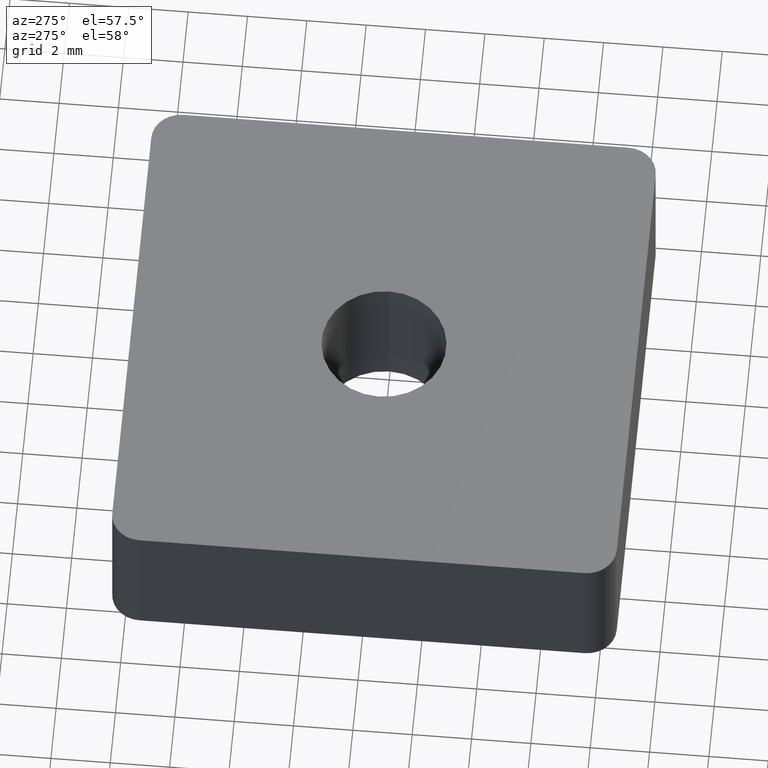
[diagram: clean part render]
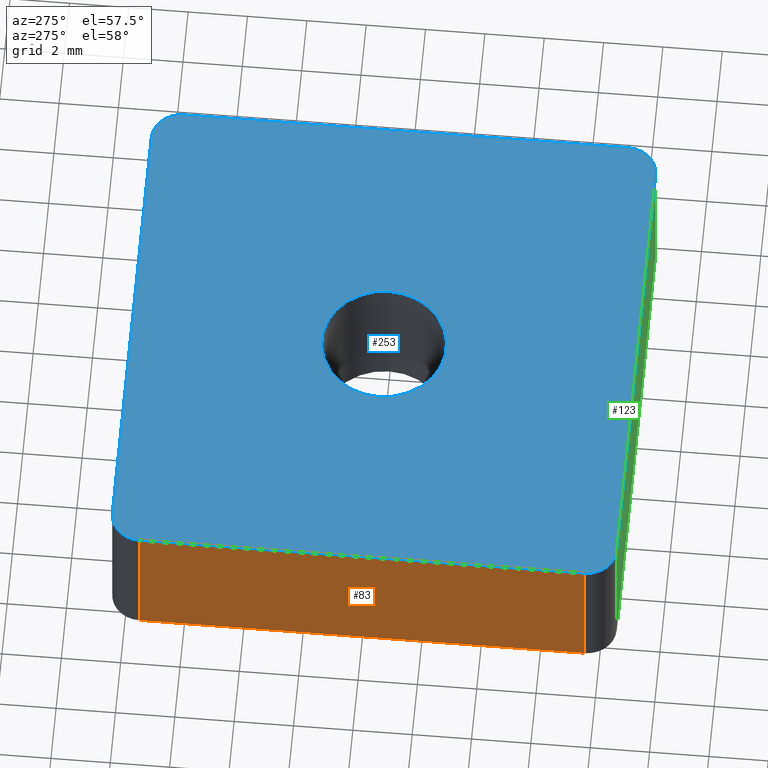
[diagram: same view with three faces highlighted in distinct colors, each labeled with its STEP entity id]
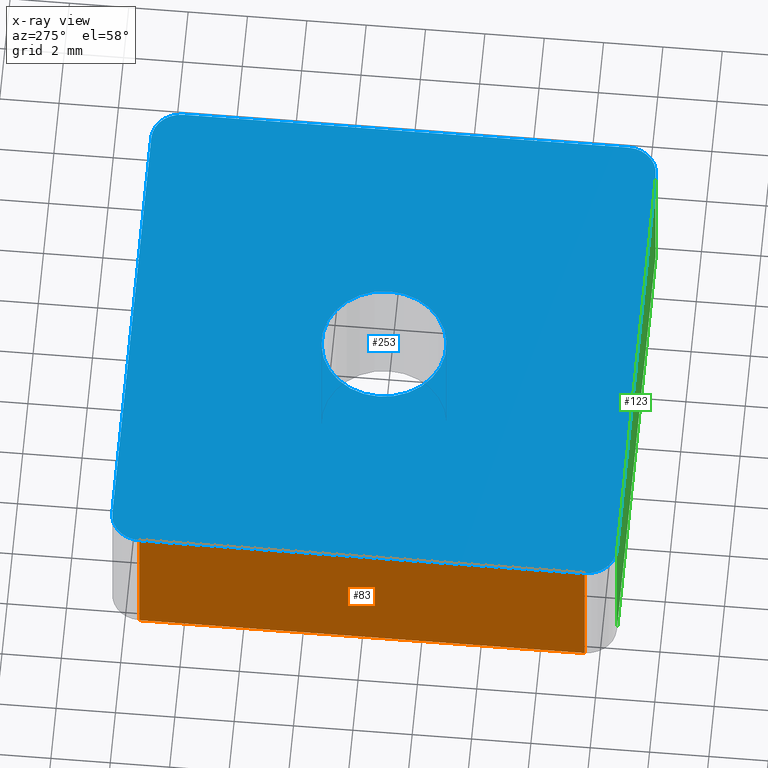
[diagram: x-ray of the same camera — body ghosted, the three highlighted faces saturated]
A machine part, auxiliary view with three faces highlighted in distinct colors.
The next image is the same camera in x-ray (body ghosted, the three faces saturated) — at least one of them is partly hidden behind the body in this view.
Their STEP definitions:

[orange] entity #83 — the highlighted planar face has unit normal (1, 0, 0).
#44=CARTESIAN_POINT('',(-8.500000000000000,-8.249999999999979,0.250000000000000));
#45=DIRECTION('',(1.0,0.0,0.0));
#46=DIRECTION('',(0.0,0.0,-1.0));
#47=AXIS2_PLACEMENT_3D('',#44,#45,#46);
#48=PLANE('',#47);
#49=CARTESIAN_POINT('',(-8.500000000000000,7.500000000000012,0.0));
#50=VERTEX_POINT('',#49);
#51=CARTESIAN_POINT('',(-8.500000000000000,-7.499999999999979,0.0));
#52=VERTEX_POINT('',#51);
#53=CARTESIAN_POINT('',(-8.500000000000000,7.500000000000012,0.0));
#54=DIRECTION('',(0.0,-1.0,0.0));
#55=VECTOR('',#54,14.999999999999989);
#56=LINE('',#53,#55);
#57=EDGE_CURVE('',#50,#52,#56,.T.);
#58=ORIENTED_EDGE('',*,*,#57,.F.);
#59=CARTESIAN_POINT('',(-8.500000000000000,7.500000000000012,-5.0));
#60=VERTEX_POINT('',#59);
#61=CARTESIAN_POINT('',(-8.500000000000000,7.500000000000012,0.0));
#62=DIRECTION('',(0.0,0.0,-1.0));
#63=VECTOR('',#62,5.0);
#64=LINE('',#61,#63);
#65=EDGE_CURVE('',#50,#60,#64,.T.);
#66=ORIENTED_EDGE('',*,*,#65,.T.);
#67=CARTESIAN_POINT('',(-8.500000000000000,-7.499999999999979,-5.0));
#68=VERTEX_POINT('',#67);
#69=CARTESIAN_POINT('',(-8.500000000000000,7.500000000000012,-5.0));
#70=DIRECTION('',(0.0,-1.0,0.0));
#71=VECTOR('',#70,14.999999999999989);
#72=LINE('',#69,#71);
#73=EDGE_CURVE('',#60,#68,#72,.T.);
#74=ORIENTED_EDGE('',*,*,#73,.T.);
#75=CARTESIAN_POINT('',(-8.500000000000000,-7.499999999999979,-5.0));
#76=DIRECTION('',(0.0,0.0,1.0));
#77=VECTOR('',#76,5.0);
#78=LINE('',#75,#77);
#79=EDGE_CURVE('',#68,#52,#78,.T.);
#80=ORIENTED_EDGE('',*,*,#79,.T.);
#81=EDGE_LOOP('',(#58,#66,#74,#80));
#82=FACE_OUTER_BOUND('',#81,.T.);
#83=ADVANCED_FACE('',(#82),#48,.F.);

[blue] entity #253 — the highlighted planar face has unit normal (0, 0, 1).
#18=CARTESIAN_POINT('',(-2.100000000000001,0.0,0.0));
#19=VERTEX_POINT('',#18);
#26=CARTESIAN_POINT('',(2.100000000000001,0.0,0.0));
#27=VERTEX_POINT('',#26);
#28=CARTESIAN_POINT('',(0.0,0.0,0.0));
#29=DIRECTION('',(0.0,0.0,1.0));
#30=DIRECTION('',(0.0,1.0,0.0));
#31=AXIS2_PLACEMENT_3D('',#28,#29,#30);
#32=CIRCLE('',#31,2.100000000000001);
#33=EDGE_CURVE('',#19,#27,#32,.T.);
#49=CARTESIAN_POINT('',(-8.500000000000000,7.500000000000012,0.0));
#50=VERTEX_POINT('',#49);
#51=CARTESIAN_POINT('',(-8.500000000000000,-7.499999999999979,0.0));
#52=VERTEX_POINT('',#51);
#53=CARTESIAN_POINT('',(-8.500000000000000,7.500000000000012,0.0));
#54=DIRECTION('',(0.0,-1.0,0.0));
#55=VECTOR('',#54,14.999999999999989);
#56=LINE('',#53,#55);
#57=EDGE_CURVE('',#50,#52,#56,.T.);
#99=CARTESIAN_POINT('',(7.499999999999993,-8.500000000000000,0.0));
#100=VERTEX_POINT('',#99);
#107=CARTESIAN_POINT('',(-7.500000000000000,-8.500000000000000,0.0));
#108=VERTEX_POINT('',#107);
#109=CARTESIAN_POINT('',(-7.500000000000000,-8.500000000000000,0.0));
#110=DIRECTION('',(1.0,0.0,0.0));
#111=VECTOR('',#110,14.999999999999993);
#112=LINE('',#109,#111);
#113=EDGE_CURVE('',#108,#100,#112,.T.);
#139=CARTESIAN_POINT('',(8.499999999999993,7.500000000000012,0.0));
#140=VERTEX_POINT('',#139);
#147=CARTESIAN_POINT('',(8.499999999999993,-7.499999999999979,0.0));
#148=VERTEX_POINT('',#147);
#149=CARTESIAN_POINT('',(8.499999999999993,-7.499999999999979,0.0));
#150=DIRECTION('',(0.0,1.0,0.0));
#151=VECTOR('',#150,14.999999999999989);
#152=LINE('',#149,#151);
#153=EDGE_CURVE('',#148,#140,#152,.T.);
#169=CARTESIAN_POINT('',(7.499999999999993,8.500000000000011,0.0));
#170=VERTEX_POINT('',#169);
#171=CARTESIAN_POINT('',(-7.500000000000000,8.500000000000011,0.0));
#172=VERTEX_POINT('',#171);
#173=CARTESIAN_POINT('',(7.499999999999993,8.500000000000011,0.0));
#174=DIRECTION('',(-1.0,0.0,0.0));
#175=VECTOR('',#174,14.999999999999993);
#176=LINE('',#173,#175);
#177=EDGE_CURVE('',#170,#172,#176,.T.);
#204=CARTESIAN_POINT('',(-9.350000000000001,-9.350000000000001,0.0));
#205=DIRECTION('',(0.0,0.0,1.0));
#206=DIRECTION('',(1.0,0.0,0.0));
#207=AXIS2_PLACEMENT_3D('',#204,#205,#206);
#208=PLANE('',#207);
#209=ORIENTED_EDGE('',*,*,#153,.T.);
#210=CARTESIAN_POINT('',(7.499999999999993,7.500000000000012,0.0));
#211=DIRECTION('',(0.0,0.0,1.0));
#212=DIRECTION('',(1.0,0.0,0.0));
#213=AXIS2_PLACEMENT_3D('',#210,#211,#212);
#214=CIRCLE('',#213,1.000000000000001);
#215=EDGE_CURVE('',#140,#170,#214,.T.);
#216=ORIENTED_EDGE('',*,*,#215,.T.);
#217=ORIENTED_EDGE('',*,*,#177,.T.);
#218=CARTESIAN_POINT('',(-7.500000000000000,7.500000000000012,0.0));
#219=DIRECTION('',(0.0,0.0,1.0));
#220=DIRECTION('',(1.0,0.0,0.0));
#221=AXIS2_PLACEMENT_3D('',#218,#219,#220);
#222=CIRCLE('',#221,1.000000000000001);
#223=EDGE_CURVE('',#172,#50,#222,.T.);
#224=ORIENTED_EDGE('',*,*,#223,.T.);
#225=ORIENTED_EDGE('',*,*,#57,.T.);
#226=CARTESIAN_POINT('',(-7.500000000000000,-7.499999999999979,0.0));
#227=DIRECTION('',(0.0,0.0,1.0));
#228=DIRECTION('',(1.0,0.0,0.0));
#229=AXIS2_PLACEMENT_3D('',#226,#227,#228);
#230=CIRCLE('',#229,1.000000000000001);
#231=EDGE_CURVE('',#52,#108,#230,.T.);
#232=ORIENTED_EDGE('',*,*,#231,.T.);
#233=ORIENTED_EDGE('',*,*,#113,.T.);
#234=CARTESIAN_POINT('',(7.499999999999993,-7.499999999999979,0.0));
#235=DIRECTION('',(0.0,0.0,1.0));
#236=DIRECTION('',(1.0,0.0,0.0));
#237=AXIS2_PLACEMENT_3D('',#234,#235,#236);
#238=CIRCLE('',#237,1.000000000000001);
#239=EDGE_CURVE('',#100,#148,#238,.T.);
#240=ORIENTED_EDGE('',*,*,#239,.T.);
#241=EDGE_LOOP('',(#209,#216,#217,#224,#225,#232,#233,#240));
#242=FACE_OUTER_BOUND('',#241,.T.);
#243=CARTESIAN_POINT('',(0.0,0.0,0.0));
#244=DIRECTION('',(0.0,0.0,1.0));
#245=DIRECTION('',(0.0,1.0,0.0));
#246=AXIS2_PLACEMENT_3D('',#243,#244,#245);
#247=CIRCLE('',#246,2.100000000000001);
#248=EDGE_CURVE('',#27,#19,#247,.T.);
#249=ORIENTED_EDGE('',*,*,#248,.F.);
#250=ORIENTED_EDGE('',*,*,#33,.F.);
#251=EDGE_LOOP('',(#249,#250));
#252=FACE_BOUND('',#251,.T.);
#253=ADVANCED_FACE('',(#242,#252),#208,.T.);

[green] entity #123 — the highlighted planar face has unit normal (0, 1, 0).
#84=CARTESIAN_POINT('',(-8.250000000000000,-8.500000000000000,-5.250000000000000));
#85=DIRECTION('',(0.0,1.0,0.0));
#86=DIRECTION('',(0.0,0.0,1.0));
#87=AXIS2_PLACEMENT_3D('',#84,#85,#86);
#88=PLANE('',#87);
#89=CARTESIAN_POINT('',(-7.500000000000000,-8.500000000000000,-5.0));
#90=VERTEX_POINT('',#89);
#91=CARTESIAN_POINT('',(7.499999999999993,-8.500000000000000,-5.0));
#92=VERTEX_POINT('',#91);
#93=CARTESIAN_POINT('',(-7.500000000000000,-8.500000000000000,-5.0));
#94=DIRECTION('',(1.0,0.0,0.0));
#95=VECTOR('',#94,14.999999999999993);
#96=LINE('',#93,#95);
#97=EDGE_CURVE('',#90,#92,#96,.T.);
#98=ORIENTED_EDGE('',*,*,#97,.T.);
#99=CARTESIAN_POINT('',(7.499999999999993,-8.500000000000000,0.0));
#100=VERTEX_POINT('',#99);
#101=CARTESIAN_POINT('',(7.499999999999993,-8.500000000000000,-5.0));
#102=DIRECTION('',(0.0,0.0,1.0));
#103=VECTOR('',#102,5.0);
#104=LINE('',#101,#103);
#105=EDGE_CURVE('',#92,#100,#104,.T.);
#106=ORIENTED_EDGE('',*,*,#105,.T.);
#107=CARTESIAN_POINT('',(-7.500000000000000,-8.500000000000000,0.0));
#108=VERTEX_POINT('',#107);
#109=CARTESIAN_POINT('',(-7.500000000000000,-8.500000000000000,0.0));
#110=DIRECTION('',(1.0,0.0,0.0));
#111=VECTOR('',#110,14.999999999999993);
#112=LINE('',#109,#111);
#113=EDGE_CURVE('',#108,#100,#112,.T.);
#114=ORIENTED_EDGE('',*,*,#113,.F.);
#115=CARTESIAN_POINT('',(-7.500000000000000,-8.500000000000000,0.0));
#116=DIRECTION('',(0.0,0.0,-1.0));
#117=VECTOR('',#116,5.0);
#118=LINE('',#115,#117);
#119=EDGE_CURVE('',#108,#90,#118,.T.);
#120=ORIENTED_EDGE('',*,*,#119,.T.);
#121=EDGE_LOOP('',(#98,#106,#114,#120));
#122=FACE_OUTER_BOUND('',#121,.T.);
#123=ADVANCED_FACE('',(#122),#88,.F.);